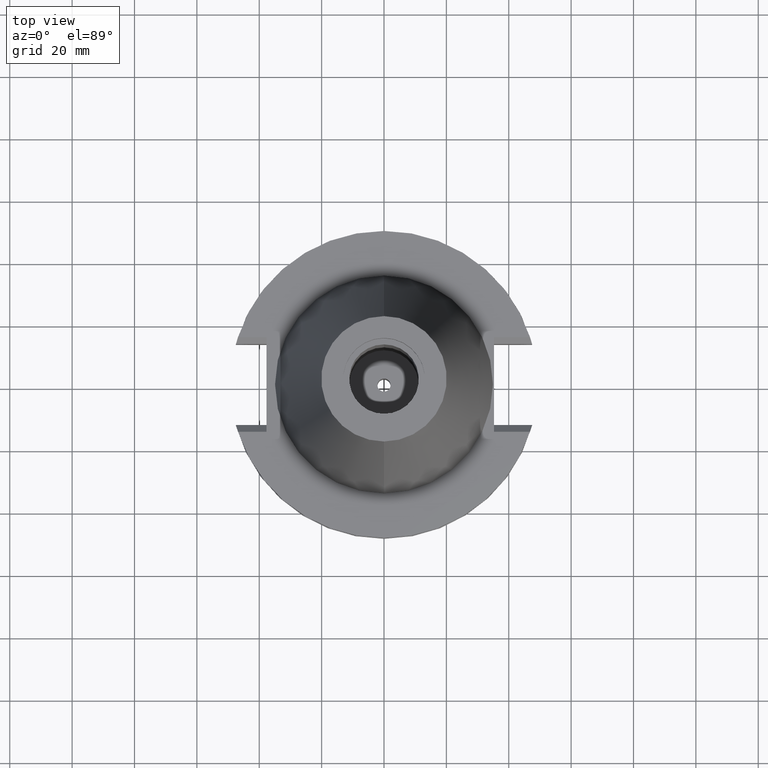
[diagram: clean part render]
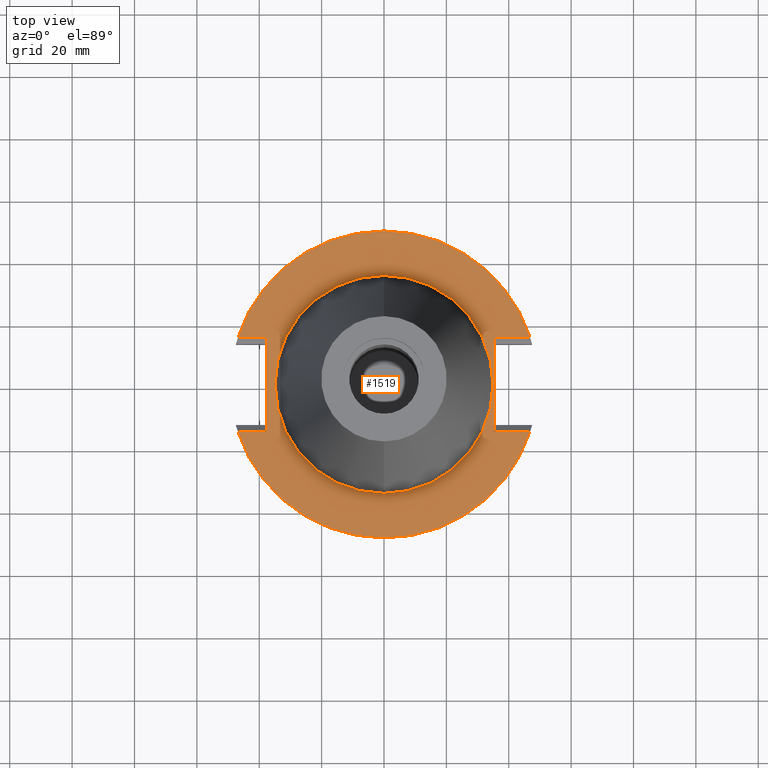
[diagram: same view with one face highlighted and labeled with its STEP entity id]
A machine part, top view. The second image highlights one B-rep face of the part: STEP entity #1519.
In plain terms, the highlighted planar face has unit normal (0, 0, -1).
Its self-contained STEP definition (entity closure, byte-faithful):
#94=DIRECTION('',(0.E0,-1.E0,0.E0));
#95=VECTOR('',#94,3.031E1);
#96=CARTESIAN_POINT('',(3.527E1,1.5155E1,-1.5E0));
#97=LINE('',#96,#95);
#101=DIRECTION('',(1.E0,0.E0,0.E0));
#102=VECTOR('',#101,1.155089417397E1);
#103=CARTESIAN_POINT('',(3.527E1,-1.5155E1,-1.5E0));
#104=LINE('',#103,#102);
#108=CARTESIAN_POINT('',(0.E0,2.585535554700E-14,-1.5E0));
#109=DIRECTION('',(0.E0,0.E0,-1.E0));
#110=DIRECTION('',(9.514024724200E-1,-3.079502159004E-1,0.E0));
#111=AXIS2_PLACEMENT_3D('',#108,#109,#110);
#116=CARTESIAN_POINT('',(0.E0,2.585535554700E-14,-1.5E0));
#117=DIRECTION('',(0.E0,0.E0,-1.E0));
#118=DIRECTION('',(0.E0,-1.E0,0.E0));
#119=AXIS2_PLACEMENT_3D('',#116,#117,#118);
#124=DIRECTION('',(0.E0,1.E0,0.E0));
#125=VECTOR('',#124,3.031E1);
#126=CARTESIAN_POINT('',(-3.768E1,-1.5155E1,-1.5E0));
#127=LINE('',#126,#125);
#131=DIRECTION('',(-1.E0,-1.088252211580E-14,0.E0));
#132=VECTOR('',#131,9.140894173969E0);
#133=CARTESIAN_POINT('',(-3.768E1,1.5155E1,-1.5E0));
#134=LINE('',#133,#132);
#138=CARTESIAN_POINT('',(0.E0,2.585535554700E-14,-1.5E0));
#139=DIRECTION('',(0.E0,0.E0,-1.E0));
#140=DIRECTION('',(-9.514024724200E-1,3.079502159004E-1,0.E0));
#141=AXIS2_PLACEMENT_3D('',#138,#139,#140);
#146=CARTESIAN_POINT('',(0.E0,2.585535554700E-14,-1.5E0));
#147=DIRECTION('',(0.E0,0.E0,-1.E0));
#148=DIRECTION('',(0.E0,1.E0,0.E0));
#149=AXIS2_PLACEMENT_3D('',#146,#147,#148);
#154=CARTESIAN_POINT('',(0.E0,2.585535554700E-14,-1.5E0));
#155=DIRECTION('',(0.E0,0.E0,1.E0));
#156=DIRECTION('',(0.E0,-1.E0,0.E0));
#157=AXIS2_PLACEMENT_3D('',#154,#155,#156);
#162=CARTESIAN_POINT('',(0.E0,2.585535554700E-14,-1.5E0));
#163=DIRECTION('',(0.E0,0.E0,1.E0));
#164=DIRECTION('',(0.E0,1.E0,0.E0));
#165=AXIS2_PLACEMENT_3D('',#162,#163,#164);
#281=DIRECTION('',(1.E0,0.E0,0.E0));
#282=VECTOR('',#281,1.155089417397E1);
#283=CARTESIAN_POINT('',(3.527E1,1.5155E1,-1.5E0));
#284=LINE('',#283,#282);
#298=CARTESIAN_POINT('',(4.682089417397E1,1.5155E1,-1.5E0));
#561=DIRECTION('',(-1.E0,1.107685286787E-14,0.E0));
#562=VECTOR('',#561,9.140894173969E0);
#563=CARTESIAN_POINT('',(-3.768E1,-1.5155E1,-1.5E0));
#564=LINE('',#563,#562);
#575=CARTESIAN_POINT('',(4.682089417397E1,-1.5155E1,-1.5E0));
#600=CARTESIAN_POINT('',(-4.682089417397E1,-1.5155E1,-1.5E0));
#1302=CARTESIAN_POINT('',(3.527E1,-1.5155E1,-1.5E0));
#1303=VERTEX_POINT('',#1302);
#1304=CARTESIAN_POINT('',(3.527E1,1.5155E1,-1.5E0));
#1305=VERTEX_POINT('',#1304);
#1345=CARTESIAN_POINT('',(-3.768E1,1.5155E1,-1.5E0));
#1346=VERTEX_POINT('',#1345);
#1347=CARTESIAN_POINT('',(-3.768E1,-1.5155E1,-1.5E0));
#1348=VERTEX_POINT('',#1347);
#1391=VERTEX_POINT('',#575);
#1392=VERTEX_POINT('',#600);
#1393=CARTESIAN_POINT('',(0.E0,-4.92125E1,-1.5E0));
#1394=VERTEX_POINT('',#1393);
#1397=VERTEX_POINT('',#298);
#1398=CARTESIAN_POINT('',(-1.598721155460E-14,4.92125E1,-1.5E0));
#1399=VERTEX_POINT('',#1398);
#1400=CARTESIAN_POINT('',(-4.682089417397E1,1.5155E1,-1.5E0));
#1401=VERTEX_POINT('',#1400);
#1402=CARTESIAN_POINT('',(0.E0,-3.4925E1,-1.5E0));
#1403=CARTESIAN_POINT('',(0.E0,3.4925E1,-1.5E0));
#1404=VERTEX_POINT('',#1402);
#1405=VERTEX_POINT('',#1403);
#1488=CARTESIAN_POINT('',(0.E0,1.206277097160E-14,-1.5E0));
#1489=DIRECTION('',(0.E0,0.E0,-1.E0));
#1490=DIRECTION('',(0.E0,-1.E0,0.E0));
#1491=AXIS2_PLACEMENT_3D('',#1488,#1489,#1490);
#1492=PLANE('',#1491);
#1494=ORIENTED_EDGE('',*,*,#1493,.T.);
#1496=ORIENTED_EDGE('',*,*,#1495,.T.);
#1498=ORIENTED_EDGE('',*,*,#1497,.T.);
#1500=ORIENTED_EDGE('',*,*,#1499,.T.);
#1502=ORIENTED_EDGE('',*,*,#1501,.F.);
#1504=ORIENTED_EDGE('',*,*,#1503,.T.);
#1506=ORIENTED_EDGE('',*,*,#1505,.T.);
#1508=ORIENTED_EDGE('',*,*,#1507,.T.);
#1510=ORIENTED_EDGE('',*,*,#1509,.T.);
#1512=ORIENTED_EDGE('',*,*,#1511,.F.);
#1513=EDGE_LOOP('',(#1494,#1496,#1498,#1500,#1502,#1504,#1506,#1508,#1510,
#1512));
#1514=FACE_OUTER_BOUND('',#1513,.F.);
#1515=ORIENTED_EDGE('',*,*,#1467,.T.);
#1516=ORIENTED_EDGE('',*,*,#1483,.T.);
#1517=EDGE_LOOP('',(#1515,#1516));
#1518=FACE_BOUND('',#1517,.F.);
#112=CIRCLE('',#111,4.92125E1);
#120=CIRCLE('',#119,4.92125E1);
#142=CIRCLE('',#141,4.92125E1);
#150=CIRCLE('',#149,4.92125E1);
#158=CIRCLE('',#157,3.4925E1);
#166=CIRCLE('',#165,3.4925E1);
#1467=EDGE_CURVE('',#1404,#1405,#158,.T.);
#1483=EDGE_CURVE('',#1405,#1404,#166,.T.);
#1493=EDGE_CURVE('',#1305,#1303,#97,.T.);
#1495=EDGE_CURVE('',#1303,#1391,#104,.T.);
#1497=EDGE_CURVE('',#1391,#1394,#112,.T.);
#1499=EDGE_CURVE('',#1394,#1392,#120,.T.);
#1501=EDGE_CURVE('',#1348,#1392,#564,.T.);
#1503=EDGE_CURVE('',#1348,#1346,#127,.T.);
#1505=EDGE_CURVE('',#1346,#1401,#134,.T.);
#1507=EDGE_CURVE('',#1401,#1399,#142,.T.);
#1509=EDGE_CURVE('',#1399,#1397,#150,.T.);
#1511=EDGE_CURVE('',#1305,#1397,#284,.T.);
#1519=ADVANCED_FACE('',(#1514,#1518),#1492,.F.);